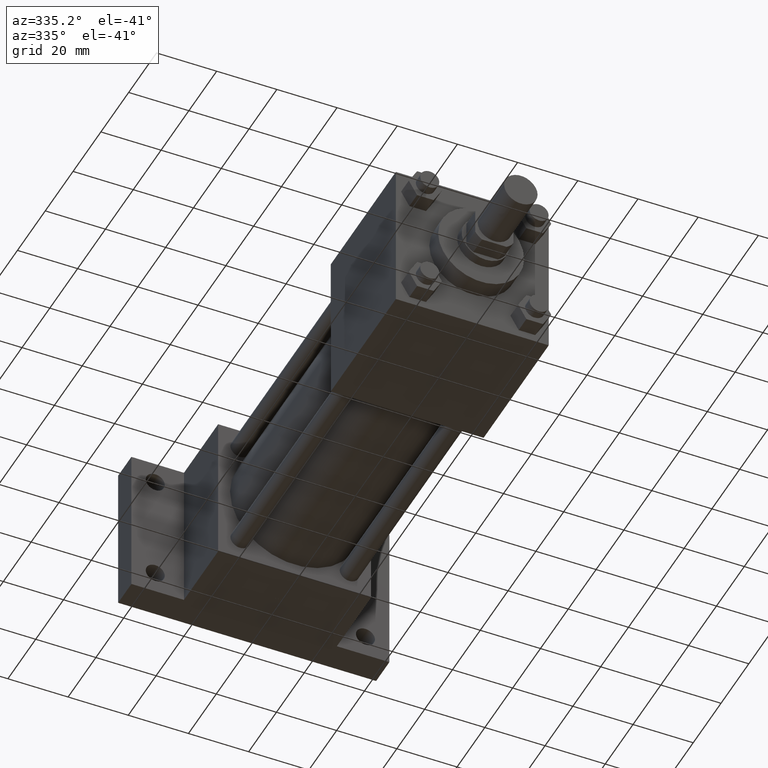
[diagram: clean part render]
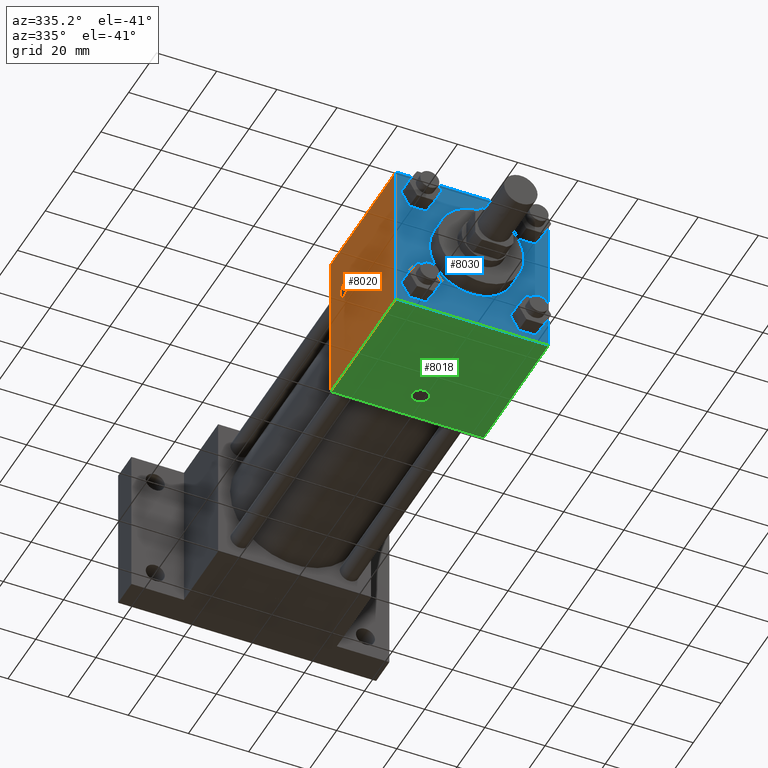
[diagram: same view with three faces highlighted in distinct colors, each labeled with its STEP entity id]
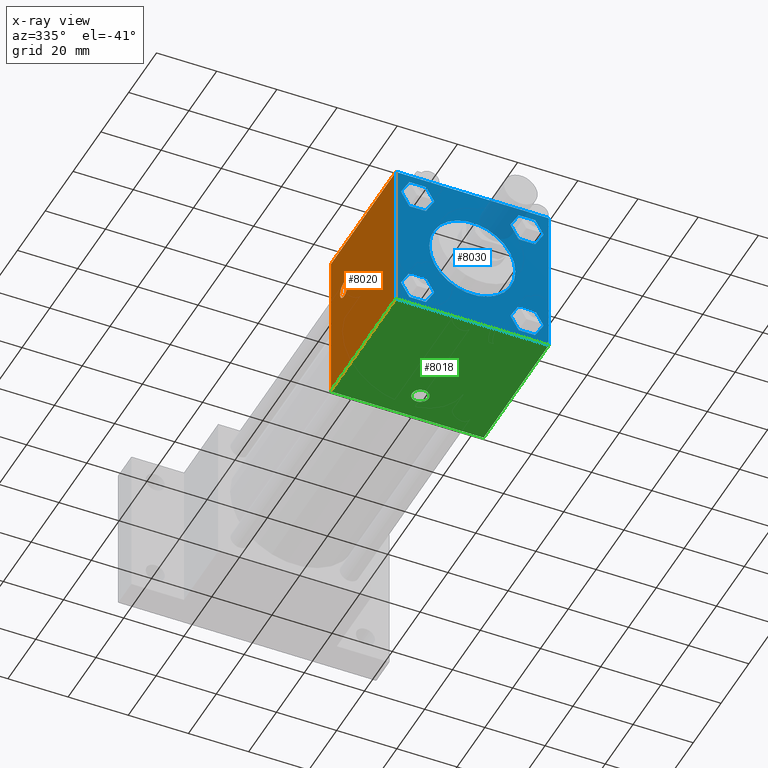
[diagram: x-ray of the same camera — body ghosted, the three highlighted faces saturated]
A machine part, auxiliary view with three faces highlighted in distinct colors.
The next image is the same camera in x-ray (body ghosted, the three faces saturated) — at least one of them is partly hidden behind the body in this view.
Their STEP definitions:

[orange] entity #8020 — the highlighted planar face has unit normal (-1, 0, 0).
#485=VERTEX_POINT('',#487);
#487=CARTESIAN_POINT('',(-2.540000000E+001,6.270625000E+001,-2.540000000E+001));
#489=EDGE_CURVE('',#494,#485,#490,.T.);
#490=LINE('',#491,#492);
#491=CARTESIAN_POINT('',(-2.540000000E+001,6.270625000E+001,2.540000000E+001));
#492=VECTOR('',#493,1.0E+000);
#493=DIRECTION('',(0.0E+000,0.0E+000,-1.0E+000));
#494=VERTEX_POINT('',#495);
#495=CARTESIAN_POINT('',(-2.540000000E+001,6.270625000E+001,2.540000000E+001));
#569=VERTEX_POINT('',#570);
#570=CARTESIAN_POINT('',(-2.540000000E+001,1.587500000E+001,-2.540000000E+001));
#571=EDGE_CURVE('',#485,#569,#572,.T.);
#572=LINE('',#573,#574);
#573=CARTESIAN_POINT('',(-2.540000000E+001,6.270625000E+001,-2.540000000E+001));
#574=VECTOR('',#575,1.0E+000);
#575=DIRECTION('',(0.0E+000,-1.0E+000,0.0E+000));
#598=EDGE_CURVE('',#494,#603,#599,.T.);
#599=LINE('',#600,#601);
#600=CARTESIAN_POINT('',(-2.540000000E+001,6.270625000E+001,2.540000000E+001));
#601=VECTOR('',#602,1.0E+000);
#602=DIRECTION('',(0.0E+000,-1.0E+000,0.0E+000));
#603=VERTEX_POINT('',#604);
#604=CARTESIAN_POINT('',(-2.540000000E+001,1.587500000E+001,2.540000000E+001));
#631=FACE_OUTER_BOUND('',#633,.T.);
#632=FACE_BOUND('',#634,.T.);
#633=EDGE_LOOP('',(#635,#636,#637,#638));
#634=EDGE_LOOP('',(#644));
#635=ORIENTED_EDGE('',*,*,#489,.T.);
#636=ORIENTED_EDGE('',*,*,#571,.T.);
#637=ORIENTED_EDGE('',*,*,#639,.F.);
#638=ORIENTED_EDGE('',*,*,#598,.F.);
#639=EDGE_CURVE('',#603,#569,#640,.T.);
#640=LINE('',#641,#642);
#641=CARTESIAN_POINT('',(-2.540000000E+001,1.587500000E+001,2.540000000E+001));
#642=VECTOR('',#643,1.0E+000);
#643=DIRECTION('',(0.0E+000,0.0E+000,-1.0E+000));
#644=ORIENTED_EDGE('',*,*,#645,.T.);
#645=EDGE_CURVE('',#651,#651,#646,.T.);
#646=CIRCLE('',#647,2.778125000E+000);
#647=AXIS2_PLACEMENT_3D('',#648,#649,#650);
#648=CARTESIAN_POINT('',(-2.540000000E+001,5.318125000E+001,7.937500000E+000));
#649=DIRECTION('',(1.0E+000,0.0E+000,0.0E+000));
#650=DIRECTION('',(0.0E+000,-1.0E+000,0.0E+000));
#651=VERTEX_POINT('',#652);
#652=CARTESIAN_POINT('',(-2.540000000E+001,5.040312500E+001,7.937500000E+000));
#653=PLANE('',#654);
#654=AXIS2_PLACEMENT_3D('',#655,#656,#657);
#655=CARTESIAN_POINT('',(-2.540000000E+001,6.270625000E+001,2.540000000E+001));
#656=DIRECTION('',(-1.0E+000,0.0E+000,0.0E+000));
#657=DIRECTION('',(0.0E+000,0.0E+000,1.0E+000));
#8020=ADVANCED_FACE('',(#631,#632),#653,.T.);

[blue] entity #8030 — the highlighted planar face has unit normal (0, 1, 0).
#424=EDGE_CURVE('',#430,#430,#425,.T.);
#425=CIRCLE('',#426,1.428750000E+001);
#426=AXIS2_PLACEMENT_3D('',#427,#428,#429);
#427=CARTESIAN_POINT('',(0.000000000E+000,1.587500000E+001,0.000000000E+000));
#428=DIRECTION('',(0.0E+000,1.0E+000,0.0E+000));
#429=DIRECTION('',(1.0E+000,0.0E+000,0.0E+000));
#430=VERTEX_POINT('',#431);
#431=CARTESIAN_POINT('',(1.428750000E+001,1.587500000E+001,0.000000000E+000));
#562=VERTEX_POINT('',#563);
#563=CARTESIAN_POINT('',(2.540000000E+001,1.587500000E+001,-2.540000000E+001));
#564=EDGE_CURVE('',#569,#562,#565,.T.);
#565=LINE('',#566,#567);
#566=CARTESIAN_POINT('',(-2.540000000E+001,1.587500000E+001,-2.540000000E+001));
#567=VECTOR('',#568,1.0E+000);
#568=DIRECTION('',(1.0E+000,0.0E+000,0.0E+000));
#569=VERTEX_POINT('',#570);
#570=CARTESIAN_POINT('',(-2.540000000E+001,1.587500000E+001,-2.540000000E+001));
#603=VERTEX_POINT('',#604);
#604=CARTESIAN_POINT('',(-2.540000000E+001,1.587500000E+001,2.540000000E+001));
#605=EDGE_CURVE('',#610,#603,#606,.T.);
#606=LINE('',#607,#608);
#607=CARTESIAN_POINT('',(2.540000000E+001,1.587500000E+001,2.540000000E+001));
#608=VECTOR('',#609,1.0E+000);
#609=DIRECTION('',(-1.0E+000,0.0E+000,0.0E+000));
#610=VERTEX_POINT('',#611);
#611=CARTESIAN_POINT('',(2.540000000E+001,1.587500000E+001,2.540000000E+001));
#639=EDGE_CURVE('',#603,#569,#640,.T.);
#640=LINE('',#641,#642);
#641=CARTESIAN_POINT('',(-2.540000000E+001,1.587500000E+001,2.540000000E+001));
#642=VECTOR('',#643,1.0E+000);
#643=DIRECTION('',(0.0E+000,0.0E+000,-1.0E+000));
#666=EDGE_CURVE('',#562,#610,#667,.T.);
#667=LINE('',#668,#669);
#668=CARTESIAN_POINT('',(2.540000000E+001,1.587500000E+001,-2.540000000E+001));
#669=VECTOR('',#670,1.0E+000);
#670=DIRECTION('',(0.0E+000,0.0E+000,1.0E+000));
#793=FACE_OUTER_BOUND('',#799,.T.);
#794=FACE_BOUND('',#800,.T.);
#795=FACE_BOUND('',#801,.T.);
#796=FACE_BOUND('',#802,.T.);
#797=FACE_BOUND('',#803,.T.);
#798=FACE_BOUND('',#804,.T.);
#799=EDGE_LOOP('',(#805,#806,#807,#808,#809,#810));
#800=EDGE_LOOP('',(#853,#854,#855,#856,#857,#858));
#801=EDGE_LOOP('',(#901,#902,#903,#904));
#802=EDGE_LOOP('',(#905));
#803=EDGE_LOOP('',(#914,#915,#916,#917,#918,#919));
#804=EDGE_LOOP('',(#962,#963,#964,#965,#966,#967));
#805=ORIENTED_EDGE('',*,*,#811,.F.);
#806=ORIENTED_EDGE('',*,*,#820,.F.);
#807=ORIENTED_EDGE('',*,*,#827,.F.);
#808=ORIENTED_EDGE('',*,*,#834,.F.);
#809=ORIENTED_EDGE('',*,*,#841,.F.);
#810=ORIENTED_EDGE('',*,*,#848,.F.);
#811=EDGE_CURVE('',#816,#817,#812,.T.);
#812=LINE('',#813,#814);
#813=CARTESIAN_POINT('',(-2.366025991E+001,1.587500000E+001,-1.816100000E+001));
#814=VECTOR('',#815,1.0E+000);
#815=DIRECTION('',(5.0E-001,0.0E+000,-8.66025403784439E-001));
#816=VERTEX_POINT('',#818);
#817=VERTEX_POINT('',#819);
#818=CARTESIAN_POINT('',(-2.366025991E+001,1.587500000E+001,-1.816100000E+001));
#819=CARTESIAN_POINT('',(-2.091063417E+001,1.587500000E+001,-2.292349635E+001));
#820=EDGE_CURVE('',#825,#816,#821,.T.);
#821=LINE('',#822,#823);
#822=CARTESIAN_POINT('',(-2.091063417E+001,1.587500000E+001,-1.339850365E+001));
#823=VECTOR('',#824,1.0E+000);
#824=DIRECTION('',(-5.0E-001,0.0E+000,-8.66025403784439E-001));
#825=VERTEX_POINT('',#826);
#826=CARTESIAN_POINT('',(-2.091063417E+001,1.587500000E+001,-1.339850365E+001));
#827=EDGE_CURVE('',#832,#825,#828,.T.);
#828=LINE('',#829,#830);
#829=CARTESIAN_POINT('',(-1.541136583E+001,1.587500000E+001,-1.339850365E+001));
#830=VECTOR('',#831,1.0E+000);
#831=DIRECTION('',(-1.0E+000,0.0E+000,0.0E+000));
#832=VERTEX_POINT('',#833);
#833=CARTESIAN_POINT('',(-1.541136583E+001,1.587500000E+001,-1.339850365E+001));
#834=EDGE_CURVE('',#839,#832,#835,.T.);
#835=LINE('',#836,#837);
#836=CARTESIAN_POINT('',(-1.266174009E+001,1.587500000E+001,-1.816100000E+001));
#837=VECTOR('',#838,1.0E+000);
#838=DIRECTION('',(-5.0E-001,0.0E+000,8.66025403784439E-001));
#839=VERTEX_POINT('',#840);
#840=CARTESIAN_POINT('',(-1.266174009E+001,1.587500000E+001,-1.816100000E+001));
#841=EDGE_CURVE('',#846,#839,#842,.T.);
#842=LINE('',#843,#844);
#843=CARTESIAN_POINT('',(-1.541136583E+001,1.587500000E+001,-2.292349635E+001));
#844=VECTOR('',#845,1.0E+000);
#845=DIRECTION('',(5.0E-001,0.0E+000,8.66025403784439E-001));
#846=VERTEX_POINT('',#847);
#847=CARTESIAN_POINT('',(-1.541136583E+001,1.587500000E+001,-2.292349635E+001));
#848=EDGE_CURVE('',#817,#846,#849,.T.);
#849=LINE('',#850,#851);
#850=CARTESIAN_POINT('',(-2.091063417E+001,1.587500000E+001,-2.292349635E+001));
#851=VECTOR('',#852,1.0E+000);
#852=DIRECTION('',(1.0E+000,0.0E+000,0.0E+000));
#853=ORIENTED_EDGE('',*,*,#859,.F.);
#854=ORIENTED_EDGE('',*,*,#868,.F.);
#855=ORIENTED_EDGE('',*,*,#875,.F.);
#856=ORIENTED_EDGE('',*,*,#882,.F.);
#857=ORIENTED_EDGE('',*,*,#889,.F.);
#858=ORIENTED_EDGE('',*,*,#896,.F.);
#859=EDGE_CURVE('',#864,#865,#860,.T.);
#860=LINE('',#861,#862);
#861=CARTESIAN_POINT('',(-2.366025991E+001,1.587500000E+001,1.816100000E+001));
#862=VECTOR('',#863,1.0E+000);
#863=DIRECTION('',(5.0E-001,0.0E+000,-8.66025403784439E-001));
#864=VERTEX_POINT('',#866);
#865=VERTEX_POINT('',#867);
#866=CARTESIAN_POINT('',(-2.366025991E+001,1.587500000E+001,1.816100000E+001));
#867=CARTESIAN_POINT('',(-2.091063417E+001,1.587500000E+001,1.339850365E+001));
#868=EDGE_CURVE('',#873,#864,#869,.T.);
#869=LINE('',#870,#871);
#870=CARTESIAN_POINT('',(-2.091063417E+001,1.587500000E+001,2.292349635E+001));
#871=VECTOR('',#872,1.0E+000);
#872=DIRECTION('',(-5.0E-001,0.0E+000,-8.66025403784439E-001));
#873=VERTEX_POINT('',#874);
#874=CARTESIAN_POINT('',(-2.091063417E+001,1.587500000E+001,2.292349635E+001));
#875=EDGE_CURVE('',#880,#873,#876,.T.);
#876=LINE('',#877,#878);
#877=CARTESIAN_POINT('',(-1.541136583E+001,1.587500000E+001,2.292349635E+001));
#878=VECTOR('',#879,1.0E+000);
#879=DIRECTION('',(-1.0E+000,0.0E+000,0.0E+000));
#880=VERTEX_POINT('',#881);
#881=CARTESIAN_POINT('',(-1.541136583E+001,1.587500000E+001,2.292349635E+001));
#882=EDGE_CURVE('',#887,#880,#883,.T.);
#883=LINE('',#884,#885);
#884=CARTESIAN_POINT('',(-1.266174009E+001,1.587500000E+001,1.816100000E+001));
#885=VECTOR('',#886,1.0E+000);
#886=DIRECTION('',(-5.0E-001,0.0E+000,8.66025403784439E-001));
#887=VERTEX_POINT('',#888);
#888=CARTESIAN_POINT('',(-1.266174009E+001,1.587500000E+001,1.816100000E+001));
#889=EDGE_CURVE('',#894,#887,#890,.T.);
#890=LINE('',#891,#892);
#891=CARTESIAN_POINT('',(-1.541136583E+001,1.587500000E+001,1.339850365E+001));
#892=VECTOR('',#893,1.0E+000);
#893=DIRECTION('',(5.0E-001,0.0E+000,8.66025403784439E-001));
#894=VERTEX_POINT('',#895);
#895=CARTESIAN_POINT('',(-1.541136583E+001,1.587500000E+001,1.339850365E+001));
#896=EDGE_CURVE('',#865,#894,#897,.T.);
#897=LINE('',#898,#899);
#898=CARTESIAN_POINT('',(-2.091063417E+001,1.587500000E+001,1.339850365E+001));
#899=VECTOR('',#900,1.0E+000);
#900=DIRECTION('',(1.0E+000,0.0E+000,0.0E+000));
#901=ORIENTED_EDGE('',*,*,#639,.T.);
#902=ORIENTED_EDGE('',*,*,#564,.T.);
#903=ORIENTED_EDGE('',*,*,#666,.T.);
#904=ORIENTED_EDGE('',*,*,#605,.T.);
#905=ORIENTED_EDGE('',*,*,#424,.F.);
#914=ORIENTED_EDGE('',*,*,#920,.F.);
#915=ORIENTED_EDGE('',*,*,#929,.F.);
#916=ORIENTED_EDGE('',*,*,#936,.F.);
#917=ORIENTED_EDGE('',*,*,#943,.F.);
#918=ORIENTED_EDGE('',*,*,#950,.F.);
#919=ORIENTED_EDGE('',*,*,#957,.F.);
#920=EDGE_CURVE('',#925,#926,#921,.T.);
#921=LINE('',#922,#923);
#922=CARTESIAN_POINT('',(1.266174009E+001,1.587500000E+001,-1.816100000E+001));
#923=VECTOR('',#924,1.0E+000);
#924=DIRECTION('',(5.0E-001,0.0E+000,-8.66025403784439E-001));
#925=VERTEX_POINT('',#927);
#926=VERTEX_POINT('',#928);
#927=CARTESIAN_POINT('',(1.266174009E+001,1.587500000E+001,-1.816100000E+001));
#928=CARTESIAN_POINT('',(1.541136583E+001,1.587500000E+001,-2.292349635E+001));
#929=EDGE_CURVE('',#934,#925,#930,.T.);
#930=LINE('',#931,#932);
#931=CARTESIAN_POINT('',(1.541136583E+001,1.587500000E+001,-1.339850365E+001));
#932=VECTOR('',#933,1.0E+000);
#933=DIRECTION('',(-5.0E-001,0.0E+000,-8.66025403784439E-001));
#934=VERTEX_POINT('',#935);
#935=CARTESIAN_POINT('',(1.541136583E+001,1.587500000E+001,-1.339850365E+001));
#936=EDGE_CURVE('',#941,#934,#937,.T.);
#937=LINE('',#938,#939);
#938=CARTESIAN_POINT('',(2.091063417E+001,1.587500000E+001,-1.339850365E+001));
#939=VECTOR('',#940,1.0E+000);
#940=DIRECTION('',(-1.0E+000,0.0E+000,0.0E+000));
#941=VERTEX_POINT('',#942);
#942=CARTESIAN_POINT('',(2.091063417E+001,1.587500000E+001,-1.339850365E+001));
#943=EDGE_CURVE('',#948,#941,#944,.T.);
#944=LINE('',#945,#946);
#945=CARTESIAN_POINT('',(2.366025991E+001,1.587500000E+001,-1.816100000E+001));
#946=VECTOR('',#947,1.0E+000);
#947=DIRECTION('',(-5.0E-001,0.0E+000,8.66025403784439E-001));
#948=VERTEX_POINT('',#949);
#949=CARTESIAN_POINT('',(2.366025991E+001,1.587500000E+001,-1.816100000E+001));
#950=EDGE_CURVE('',#955,#948,#951,.T.);
#951=LINE('',#952,#953);
#952=CARTESIAN_POINT('',(2.091063417E+001,1.587500000E+001,-2.292349635E+001));
#953=VECTOR('',#954,1.0E+000);
#954=DIRECTION('',(5.0E-001,0.0E+000,8.66025403784439E-001));
#955=VERTEX_POINT('',#956);
#956=CARTESIAN_POINT('',(2.091063417E+001,1.587500000E+001,-2.292349635E+001));
#957=EDGE_CURVE('',#926,#955,#958,.T.);
#958=LINE('',#959,#960);
#959=CARTESIAN_POINT('',(1.541136583E+001,1.587500000E+001,-2.292349635E+001));
#960=VECTOR('',#961,1.0E+000);
#961=DIRECTION('',(1.0E+000,0.0E+000,0.0E+000));
#962=ORIENTED_EDGE('',*,*,#968,.F.);
#963=ORIENTED_EDGE('',*,*,#977,.F.);
#964=ORIENTED_EDGE('',*,*,#984,.F.);
#965=ORIENTED_EDGE('',*,*,#991,.F.);
#966=ORIENTED_EDGE('',*,*,#998,.F.);
#967=ORIENTED_EDGE('',*,*,#1005,.F.);
#968=EDGE_CURVE('',#973,#974,#969,.T.);
#969=LINE('',#970,#971);
#970=CARTESIAN_POINT('',(1.266174009E+001,1.587500000E+001,1.816100000E+001));
#971=VECTOR('',#972,1.0E+000);
#972=DIRECTION('',(5.0E-001,0.0E+000,-8.66025403784439E-001));
#973=VERTEX_POINT('',#975);
#974=VERTEX_POINT('',#976);
#975=CARTESIAN_POINT('',(1.266174009E+001,1.587500000E+001,1.816100000E+001));
#976=CARTESIAN_POINT('',(1.541136583E+001,1.587500000E+001,1.339850365E+001));
#977=EDGE_CURVE('',#982,#973,#978,.T.);
#978=LINE('',#979,#980);
#979=CARTESIAN_POINT('',(1.541136583E+001,1.587500000E+001,2.292349635E+001));
#980=VECTOR('',#981,1.0E+000);
#981=DIRECTION('',(-5.0E-001,0.0E+000,-8.66025403784439E-001));
#982=VERTEX_POINT('',#983);
#983=CARTESIAN_POINT('',(1.541136583E+001,1.587500000E+001,2.292349635E+001));
#984=EDGE_CURVE('',#989,#982,#985,.T.);
#985=LINE('',#986,#987);
#986=CARTESIAN_POINT('',(2.091063417E+001,1.587500000E+001,2.292349635E+001));
#987=VECTOR('',#988,1.0E+000);
#988=DIRECTION('',(-1.0E+000,0.0E+000,0.0E+000));
#989=VERTEX_POINT('',#990);
#990=CARTESIAN_POINT('',(2.091063417E+001,1.587500000E+001,2.292349635E+001));
#991=EDGE_CURVE('',#996,#989,#992,.T.);
#992=LINE('',#993,#994);
#993=CARTESIAN_POINT('',(2.366025991E+001,1.587500000E+001,1.816100000E+001));
#994=VECTOR('',#995,1.0E+000);
#995=DIRECTION('',(-5.0E-001,0.0E+000,8.66025403784439E-001));
#996=VERTEX_POINT('',#997);
#997=CARTESIAN_POINT('',(2.366025991E+001,1.587500000E+001,1.816100000E+001));
#998=EDGE_CURVE('',#1003,#996,#999,.T.);
#999=LINE('',#1000,#1001);
#1000=CARTESIAN_POINT('',(2.091063417E+001,1.587500000E+001,1.339850365E+001));
#1001=VECTOR('',#1002,1.0E+000);
#1002=DIRECTION('',(5.0E-001,0.0E+000,8.66025403784439E-001));
#1003=VERTEX_POINT('',#1004);
#1004=CARTESIAN_POINT('',(2.091063417E+001,1.587500000E+001,1.339850365E+001));
#1005=EDGE_CURVE('',#974,#1003,#1006,.T.);
#1006=LINE('',#1007,#1008);
#1007=CARTESIAN_POINT('',(1.541136583E+001,1.587500000E+001,1.339850365E+001));
#1008=VECTOR('',#1009,1.0E+000);
#1009=DIRECTION('',(1.0E+000,0.0E+000,0.0E+000));
#1010=PLANE('',#1011);
#1011=AXIS2_PLACEMENT_3D('',#1012,#1013,#1014);
#1012=CARTESIAN_POINT('',(-2.540000000E+001,1.587500000E+001,2.540000000E+001));
#1013=DIRECTION('',(0.0E+000,1.0E+000,0.0E+000));
#1014=DIRECTION('',(0.0E+000,0.0E+000,1.0E+000));
#8030=ADVANCED_FACE('',(#793,#794,#795,#796,#797,#798),#1010,.F.);

[green] entity #8018 — the highlighted planar face has unit normal (0, 0, -1).
#480=EDGE_CURVE('',#485,#486,#481,.T.);
#481=LINE('',#482,#483);
#482=CARTESIAN_POINT('',(-2.540000000E+001,6.270625000E+001,-2.540000000E+001));
#483=VECTOR('',#484,1.0E+000);
#484=DIRECTION('',(1.0E+000,0.0E+000,0.0E+000));
#485=VERTEX_POINT('',#487);
#486=VERTEX_POINT('',#488);
#487=CARTESIAN_POINT('',(-2.540000000E+001,6.270625000E+001,-2.540000000E+001));
#488=CARTESIAN_POINT('',(2.540000000E+001,6.270625000E+001,-2.540000000E+001));
#549=FACE_OUTER_BOUND('',#551,.T.);
#550=FACE_BOUND('',#552,.T.);
#551=EDGE_LOOP('',(#553,#554,#555,#556));
#552=EDGE_LOOP('',(#576));
#553=ORIENTED_EDGE('',*,*,#557,.T.);
#554=ORIENTED_EDGE('',*,*,#564,.F.);
#555=ORIENTED_EDGE('',*,*,#571,.F.);
#556=ORIENTED_EDGE('',*,*,#480,.T.);
#557=EDGE_CURVE('',#486,#562,#558,.T.);
#558=LINE('',#559,#560);
#559=CARTESIAN_POINT('',(2.540000000E+001,6.270625000E+001,-2.540000000E+001));
#560=VECTOR('',#561,1.0E+000);
#561=DIRECTION('',(0.0E+000,-1.0E+000,0.0E+000));
#562=VERTEX_POINT('',#563);
#563=CARTESIAN_POINT('',(2.540000000E+001,1.587500000E+001,-2.540000000E+001));
#564=EDGE_CURVE('',#569,#562,#565,.T.);
#565=LINE('',#566,#567);
#566=CARTESIAN_POINT('',(-2.540000000E+001,1.587500000E+001,-2.540000000E+001));
#567=VECTOR('',#568,1.0E+000);
#568=DIRECTION('',(1.0E+000,0.0E+000,0.0E+000));
#569=VERTEX_POINT('',#570);
#570=CARTESIAN_POINT('',(-2.540000000E+001,1.587500000E+001,-2.540000000E+001));
#571=EDGE_CURVE('',#485,#569,#572,.T.);
#572=LINE('',#573,#574);
#573=CARTESIAN_POINT('',(-2.540000000E+001,6.270625000E+001,-2.540000000E+001));
#574=VECTOR('',#575,1.0E+000);
#575=DIRECTION('',(0.0E+000,-1.0E+000,0.0E+000));
#576=ORIENTED_EDGE('',*,*,#577,.T.);
#577=EDGE_CURVE('',#583,#583,#578,.T.);
#578=CIRCLE('',#579,2.778125000E+000);
#579=AXIS2_PLACEMENT_3D('',#580,#581,#582);
#580=CARTESIAN_POINT('',(0.000000000E+000,5.318125000E+001,-2.540000000E+001));
#581=DIRECTION('',(0.0E+000,0.0E+000,1.0E+000));
#582=DIRECTION('',(1.0E+000,0.0E+000,0.0E+000));
#583=VERTEX_POINT('',#584);
#584=CARTESIAN_POINT('',(2.778125000E+000,5.318125000E+001,-2.540000000E+001));
#585=PLANE('',#586);
#586=AXIS2_PLACEMENT_3D('',#587,#588,#589);
#587=CARTESIAN_POINT('',(-2.540000000E+001,6.270625000E+001,-2.540000000E+001));
#588=DIRECTION('',(0.0E+000,0.0E+000,-1.0E+000));
#589=DIRECTION('',(-1.0E+000,0.0E+000,0.0E+000));
#8018=ADVANCED_FACE('',(#549,#550),#585,.T.);